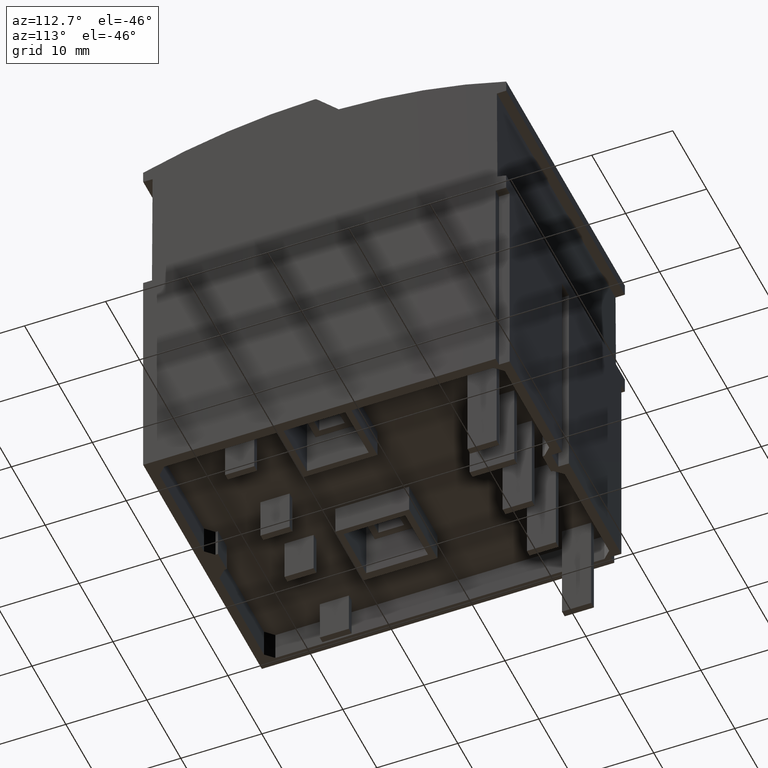
[diagram: clean part render]
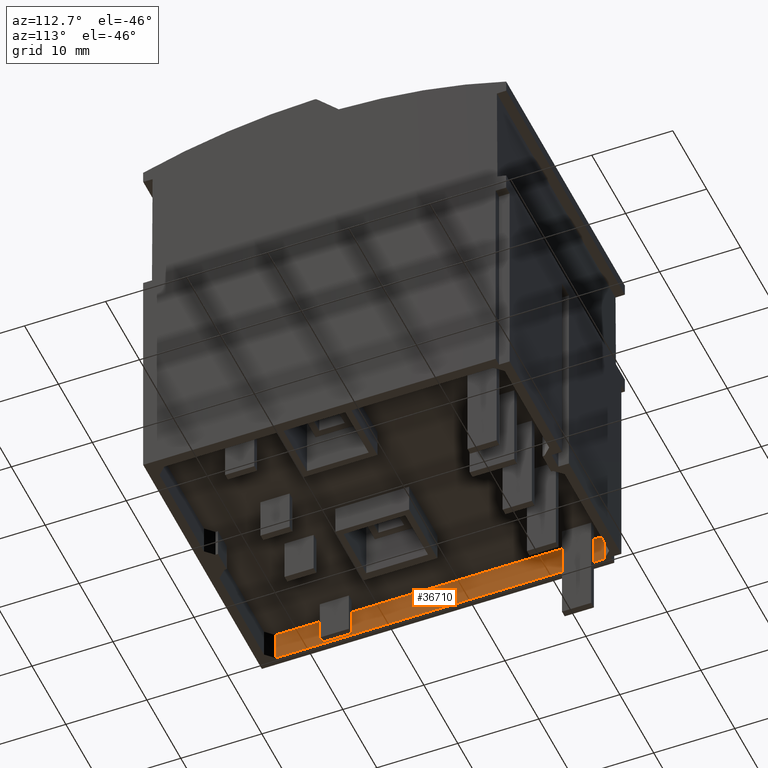
[diagram: same view with one face highlighted and labeled with its STEP entity id]
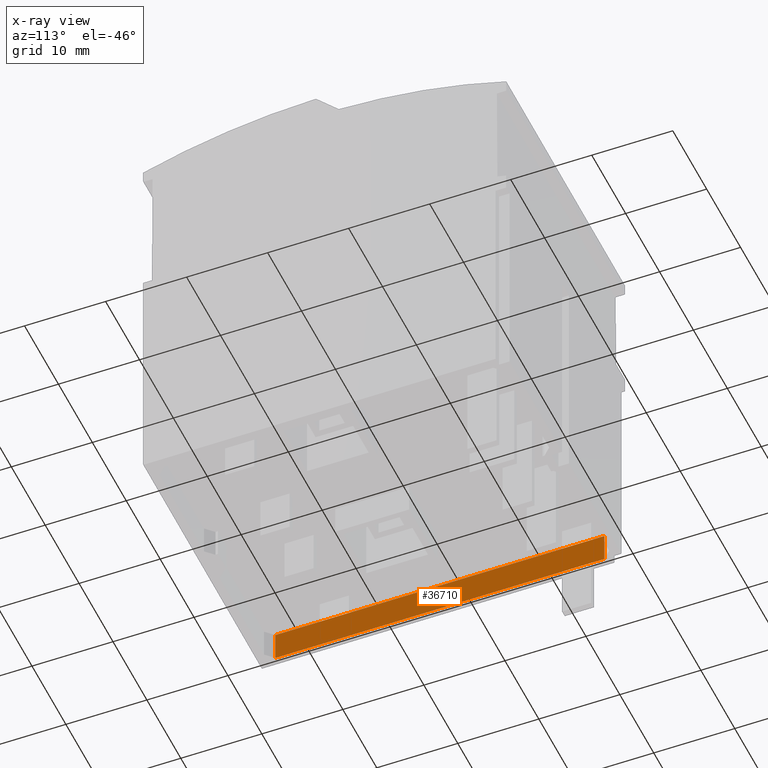
[diagram: x-ray of the same camera — body ghosted, the highlighted face saturated]
A machine part, auxiliary view. The second image highlights one B-rep face of the part: STEP entity #36710.
The next image is the same camera in x-ray: the body ghosted, the highlighted face saturated — about 0% of this face is hidden behind the body in this view.
In plain terms, the highlighted planar face has unit normal (1, -0, -0).
Its self-contained STEP definition (entity closure, byte-faithful):
#3560=CARTESIAN_POINT('',(158.920282034004,166.31959949414,
96.3022574288085));
#3570=VERTEX_POINT('',#3560);
#3620=CARTESIAN_POINT('',(172.088709993804,166.31959949414,
96.3022574288085));
#3630=DIRECTION('',(1.,-4.33680868994201E-19,3.67329007585303E-16));
#3640=VECTOR('',#3630,1.);
#3650=LINE('',#3620,#3640);
#3660=CARTESIAN_POINT('',(118.320282034003,166.31959949414,
96.3022574288084));
#3670=VERTEX_POINT('',#3660);
#3680=EDGE_CURVE('',#3670,#3570,#3650,.T.);
#10640=CARTESIAN_POINT('',(118.320282034003,170.065880918266,
96.3022574288084));
#10650=VERTEX_POINT('',#10640);
#10680=CARTESIAN_POINT('',(172.075632951579,170.065880918266,
96.3022574288085));
#10690=DIRECTION('',(-1.,-1.20996962449382E-16,-3.67329007585303E-16));
#10700=VECTOR('',#10690,1.);
#10710=LINE('',#10680,#10700);
#10720=CARTESIAN_POINT('',(158.920282034004,170.065880918266,
96.3022574288085));
#10730=VERTEX_POINT('',#10720);
#10740=EDGE_CURVE('',#10730,#10650,#10710,.T.);
#32690=CARTESIAN_POINT('',(158.920282034004,190.382999528601,
96.3022574288085));
#32700=DIRECTION('',(1.20563281580388E-16,-1.,9.04789778708891E-19));
#32710=VECTOR('',#32700,1.);
#32720=LINE('',#32690,#32710);
#32730=EDGE_CURVE('',#10730,#3570,#32720,.T.);
#36500=CARTESIAN_POINT('',(118.320282034003,190.241278217728,
96.3022574288084));
#36510=DIRECTION('',(1.20996962449382E-16,-1.,9.04789778708891E-19));
#36520=VECTOR('',#36510,1.);
#36530=LINE('',#36500,#36520);
#36540=EDGE_CURVE('',#10650,#3670,#36530,.T.);
#36600=CARTESIAN_POINT('',(158.920282034004,170.065880918266,
96.3022574288085));
#36610=DIRECTION('',(3.67405659928626E-16,-7.51442445056118E-19,-1.));
#36620=DIRECTION('',(-1.,-1.20996962449382E-16,-3.67405659928626E-16));
#36630=AXIS2_PLACEMENT_3D('',#36600,#36610,#36620);
#36640=PLANE('',#36630);
#36650=ORIENTED_EDGE('',*,*,#36540,.F.);
#36660=ORIENTED_EDGE('',*,*,#3680,.F.);
#36670=ORIENTED_EDGE('',*,*,#32730,.T.);
#36680=ORIENTED_EDGE('',*,*,#10740,.F.);
#36690=EDGE_LOOP('',(#36680,#36670,#36660,#36650));
#36700=FACE_OUTER_BOUND('',#36690,.T.);
#36710=ADVANCED_FACE('',(#36700),#36640,.T.);